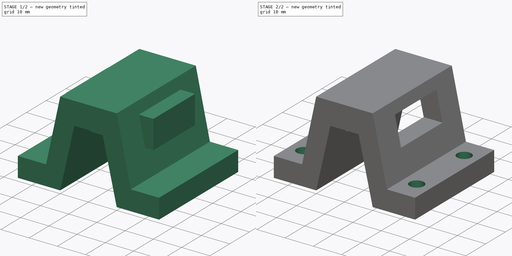
[diagram: build sequence overview — one tinted view per stage of 2, left to right]
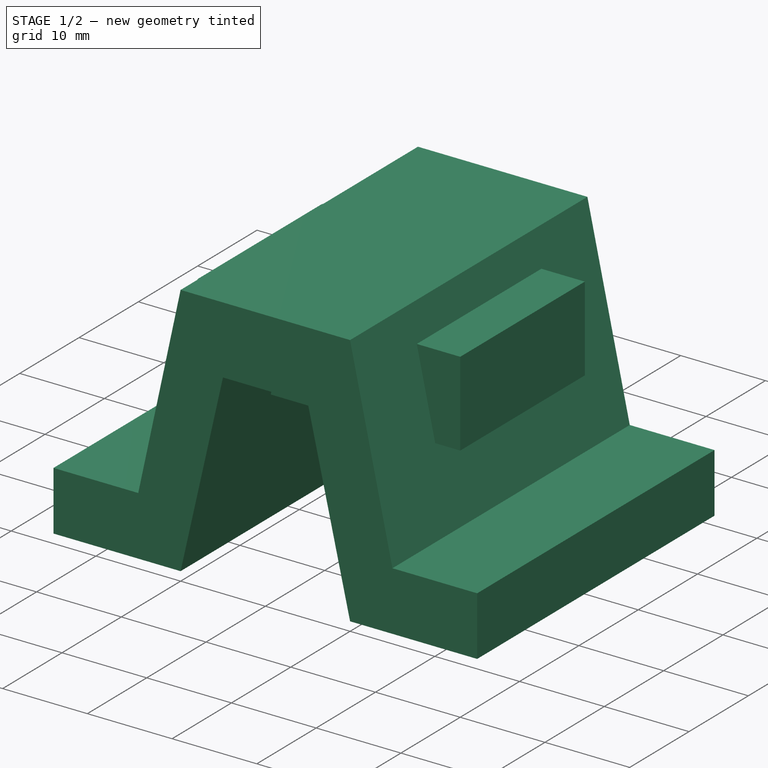
[diagram: stage 1 of 2 — iso view after this stage's code; geometry added in this stage tinted green]
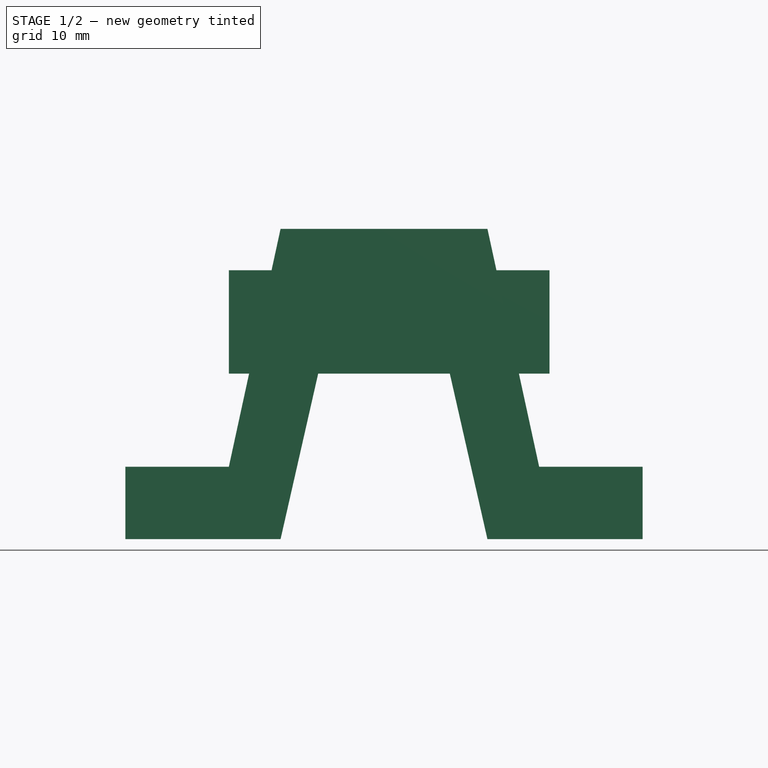
[diagram: stage 1 of 2 — front view after this stage's code; geometry added in this stage tinted green]
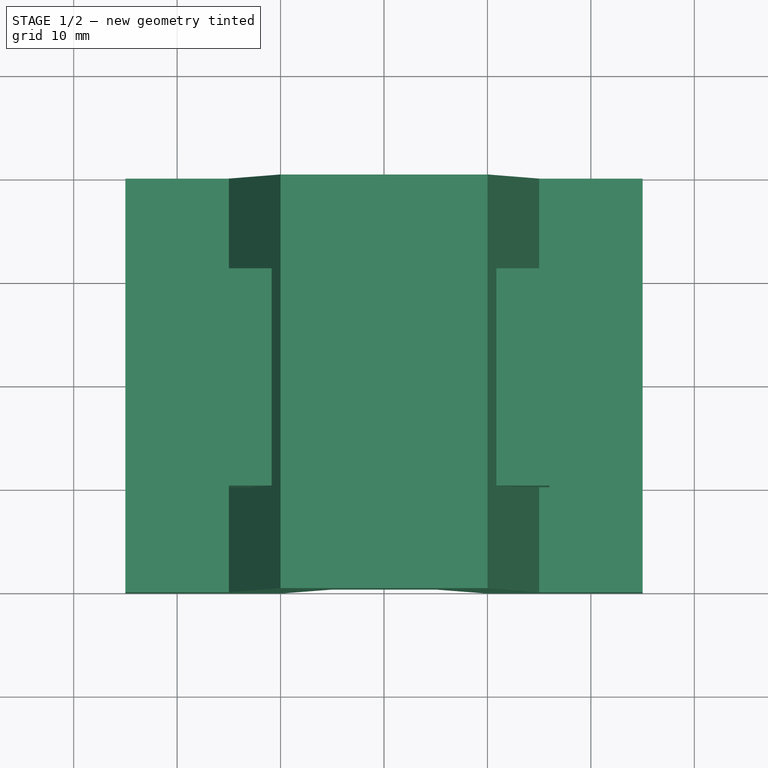
[diagram: stage 1 of 2 — top view after this stage's code; geometry added in this stage tinted green]
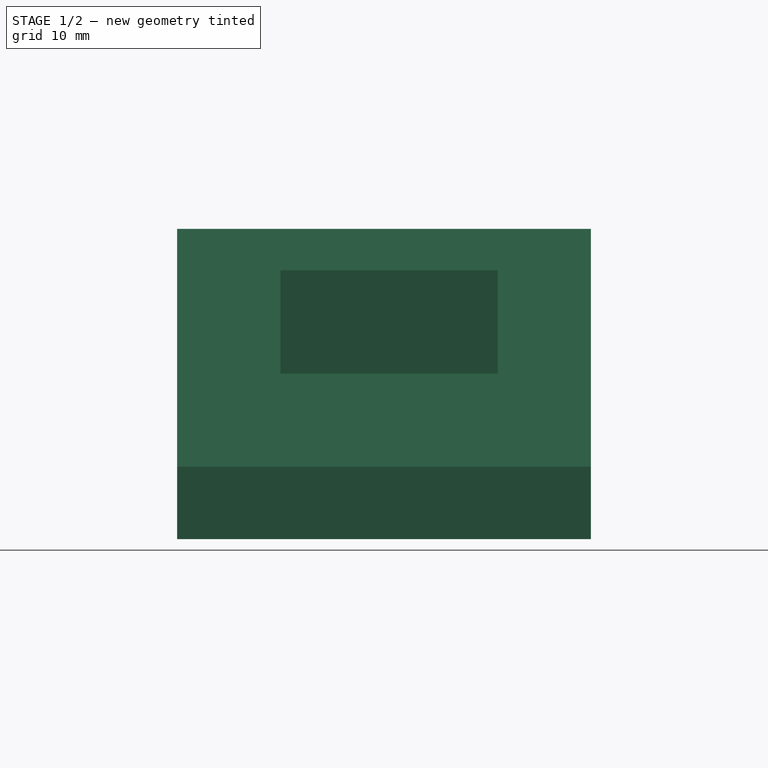
[diagram: stage 1 of 2 — right view after this stage's code; geometry added in this stage tinted green]
FCSTD DOCUMENT  (FreeCAD 0.16R6700 (Git))
Label: ejer4
License: All rights reserved
LicenseURL: http://en.wikipedia.org/wiki/All_rights_reserved
objects: Sketcher::SketchObject×3, PartDesign::Pad×1, Part::Box×1, Part::Cut×1, PartDesign::Pocket×1
note: 9 computed .brp shape members not serialized (recipe doc carries the construction recipe); baked Part::Feature solids carry a one-line shape summary decoded from their .brp

FEATURE [Sketcher::SketchObject] Sketch
  Placement = pos=(0,0,0) rot=(-1,0,0;4.71239rad)
  sketch-geometry (12):
    g0: LineSegment StartX=-25 StartY=-15 StartZ=0 EndX=-10 EndY=-15 EndZ=0
    g1: LineSegment StartX=-10 StartY=-15 StartZ=0 EndX=-5 EndY=7 EndZ=0
    g2: LineSegment StartX=-5 StartY=7 StartZ=0 EndX=5 EndY=7 EndZ=0
    g3: LineSegment StartX=5 StartY=7 StartZ=0 EndX=10 EndY=-15 EndZ=0
    g4: LineSegment StartX=10 StartY=-15 StartZ=0 EndX=25 EndY=-15 EndZ=0
    g5: LineSegment StartX=25 StartY=-15 StartZ=0 EndX=25 EndY=-8 EndZ=0
    g6: LineSegment StartX=25 StartY=-8 StartZ=0 EndX=15 EndY=-8 EndZ=0
    g7: LineSegment StartX=15 StartY=-8 StartZ=0 EndX=10 EndY=15 EndZ=0
    g8: LineSegment StartX=10 StartY=15 StartZ=0 EndX=-10 EndY=15 EndZ=0
    g9: LineSegment StartX=-10 StartY=15 StartZ=0 EndX=-15 EndY=-8 EndZ=0
    g10: LineSegment StartX=-15 StartY=-8 StartZ=0 EndX=-25 EndY=-8 EndZ=0
    g11: LineSegment StartX=-25 StartY=-8 StartZ=0 EndX=-25 EndY=-15 EndZ=0
  constraints (34):
    c: Horizontal(g0)
    c: Coincident(g0,g1)
    c: Coincident(g1,g2)
    c: Horizontal(g2)
    c: Coincident(g2,g3)
    c: Coincident(g3,g4)
    c: Horizontal(g4)
    c: Coincident(g4,g5)
    c: Coincident(g5,g6)
    c: Horizontal(g6)
    c: Coincident(g6,g7)
    c: Coincident(g7,g8)
    c: Horizontal(g8)
    c: Coincident(g8,g9)
    c: Coincident(g9,g10)
    c: Coincident(g10,g11)
    c: Coincident(g11,g0)
    c: Horizontal(g10)
    c: Vertical(g11)
    c: Vertical(g5)
    c: Symmetric(g0,g3,g-2)
    c: Symmetric(g1,g2,g-2)
    c: Symmetric(g8,g7,g-2)
    c: Symmetric(g6,g9,g-2)
    c: DistanceX(g10,g10) = 10
    c: DistanceX(g6,g6) = 10
    c: DistanceX(g0,g3) = 20
    c: DistanceX(g4,g4) = 15
    c: DistanceX(g8,g7) = 20
    c: DistanceX(g1,g2) = 10
    c: DistanceY(g2,g7) = 8
    c: DistanceY(g4,g7) = 30
    c: DistanceY(g4,g5) = 7
    c: Symmetric(g0,g8,g-1)
FEATURE [PartDesign::Pad] Pad
  Length = 40
  Length2 = 100
  Midplane = true
  Placement = pos=(0,0,0) rot=(-1,0,0;4.71239rad)
  Sketch = -> Sketch
  Type = 0
FEATURE [Part::Box] Box  label="Cubo"
  Height = 10
  Length = 31
  Placement = pos=(-15,-10,1) rot=(0,0,1;0rad)
  Width = 21
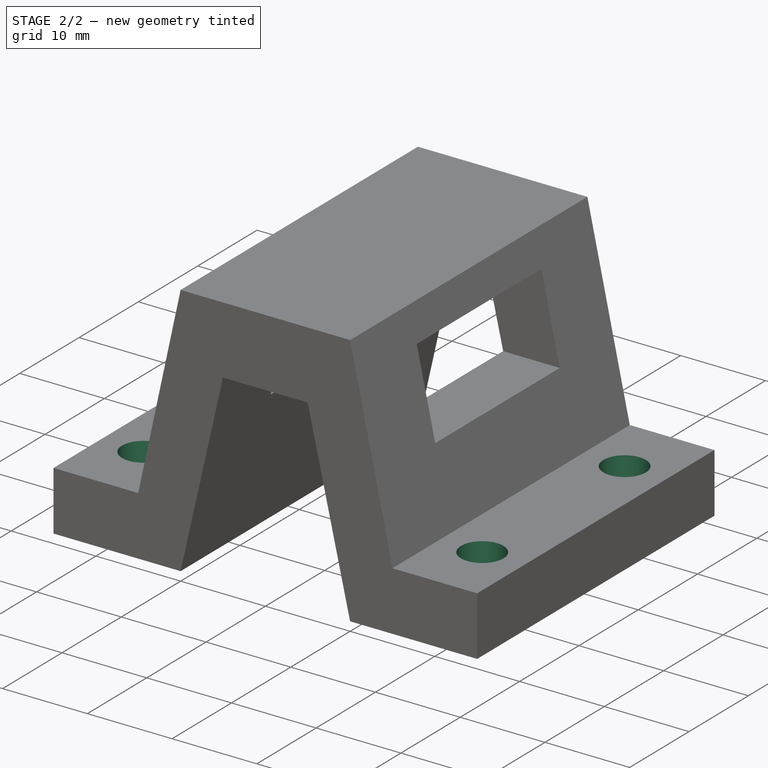
[diagram: stage 2 of 2 — iso view after this stage's code; geometry added in this stage tinted green]
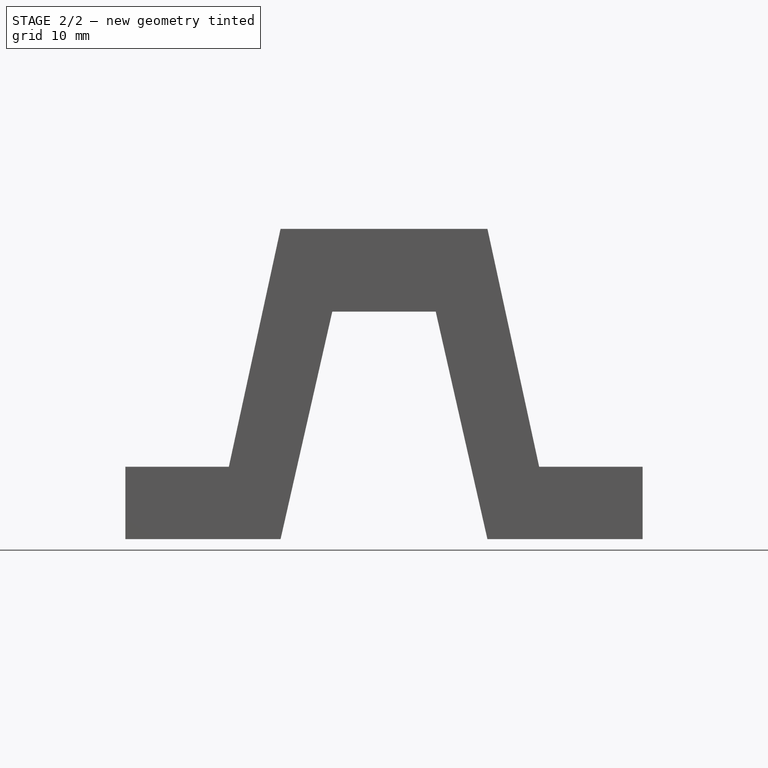
[diagram: stage 2 of 2 — front view after this stage's code; geometry added in this stage tinted green]
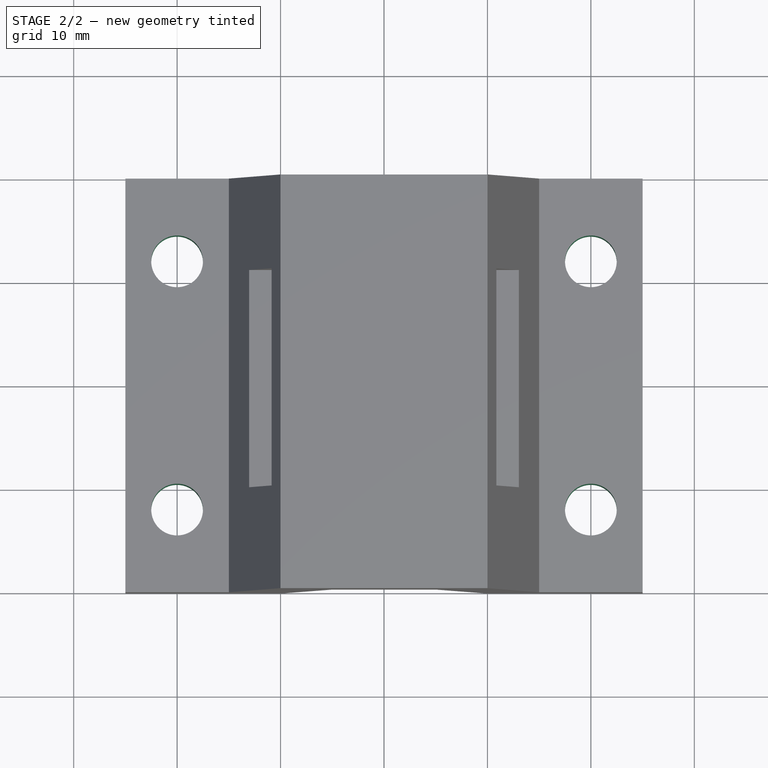
[diagram: stage 2 of 2 — top view after this stage's code; geometry added in this stage tinted green]
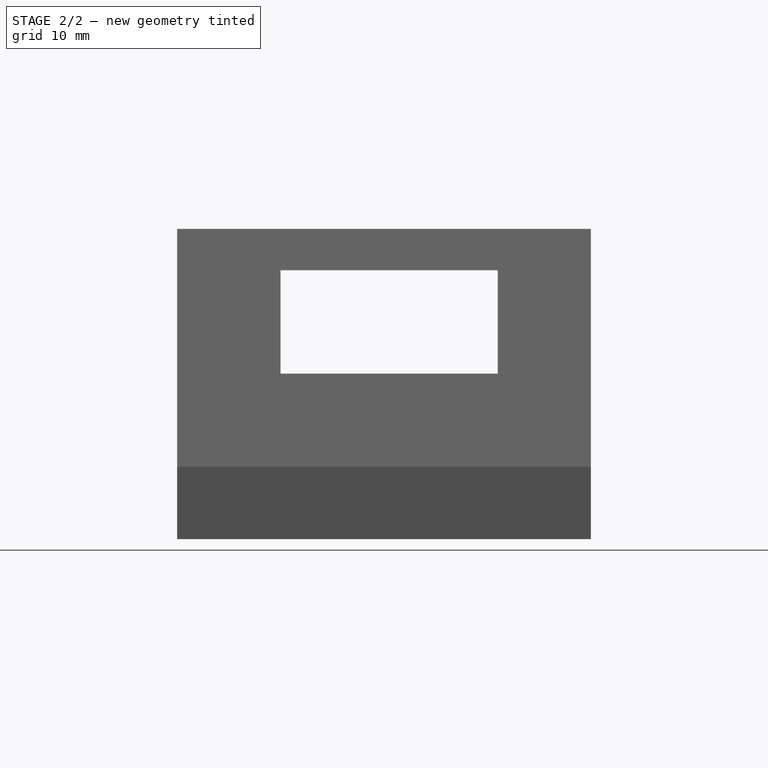
[diagram: stage 2 of 2 — right view after this stage's code; geometry added in this stage tinted green]
FEATURE [Sketcher::SketchObject] Sketch001
  ExternalGeometry = -> [Pad]
  Placement = pos=(-12.6625,0,2.75271) rot=(-0.627523,0,0.778598;3.14159rad)
  Support = -> Pad [Face10]
  sketch-geometry (4):
    g0: LineSegment [constr] StartX=-7.53335 StartY=9.81069 StartZ=0 EndX=2.46665 EndY=9.81069 EndZ=0
    g1: LineSegment [constr] StartX=2.46665 StartY=9.81069 StartZ=0 EndX=2.46665 EndY=-10.1893 EndZ=0
    g2: LineSegment [constr] StartX=2.46665 StartY=-10.1893 StartZ=0 EndX=-7.53335 EndY=-10.1893 EndZ=0
    g3: LineSegment [constr] StartX=-7.53335 StartY=-10.1893 StartZ=0 EndX=-7.53335 EndY=9.81069 EndZ=0
  constraints (11):
    c: Coincident(g0,g1)
    c: Coincident(g1,g2)
    c: Coincident(g2,g3)
    c: Coincident(g3,g0)
    c: Horizontal(g0)
    c: Horizontal(g2)
    c: Vertical(g1)
    c: Vertical(g3)
    c: DistanceX(g-3,g0) = 5
    c: DistanceX(g0,g0) = 10
    c: DistanceY(g1,g1) = 20
FEATURE [Part::Cut] Cut
  Base = -> Pad
  Tool = -> Box
FEATURE [Sketcher::SketchObject] Sketch002
  Placement = pos=(0,0,-8) rot=(0,0,1;0rad)
  Support = -> Cut [Face6]
  sketch-geometry (4):
    g0: Circle CenterX=-20.0021 CenterY=12 CenterZ=0 NormalX=0 NormalY=0 NormalZ=1 Radius=2.5
    g1: Circle CenterX=-20.0021 CenterY=-12 CenterZ=0 NormalX=0 NormalY=0 NormalZ=1 Radius=2.5
    g2: Circle CenterX=19.9979 CenterY=12 CenterZ=0 NormalX=0 NormalY=0 NormalZ=1 Radius=2.5
    g3: Circle CenterX=19.9979 CenterY=-12 CenterZ=0 NormalX=0 NormalY=0 NormalZ=1 Radius=2.5
  constraints (9):
    c: Radius(g0) = 2.5
    c: Equal(g0,g2)
    c: Equal(g0,g3)
    c: Equal(g0,g1)
    c: DistanceY(g1,g0) = 24
    c: DistanceY(g3,g2) = 24
    c: Symmetric(g3,g2,g-1)
    c: Symmetric(g0,g1,g-1)
    c: DistanceX(g1,g3) = 40
FEATURE [PartDesign::Pocket] Pocket
  Length = 5
  Sketch = -> Sketch002
  Type = 1
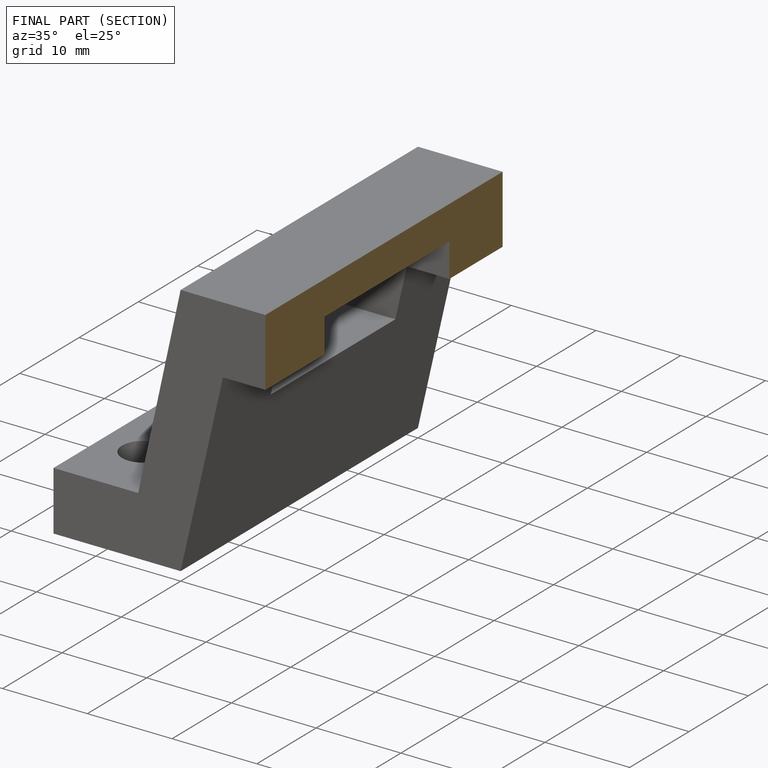
[diagram: finished part — half-section view (interior)]
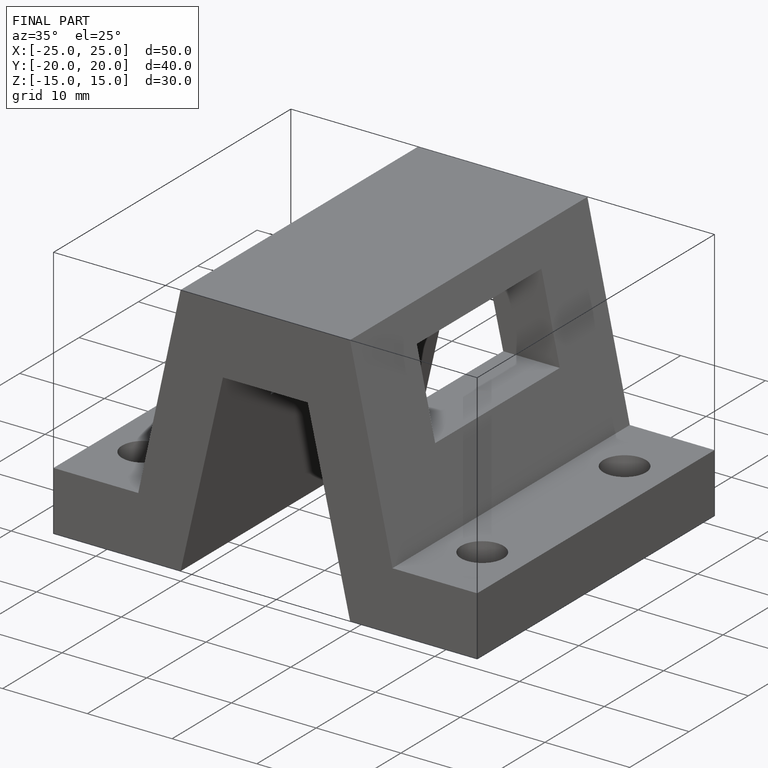
[diagram: finished part — iso view with bounding-box wireframe]
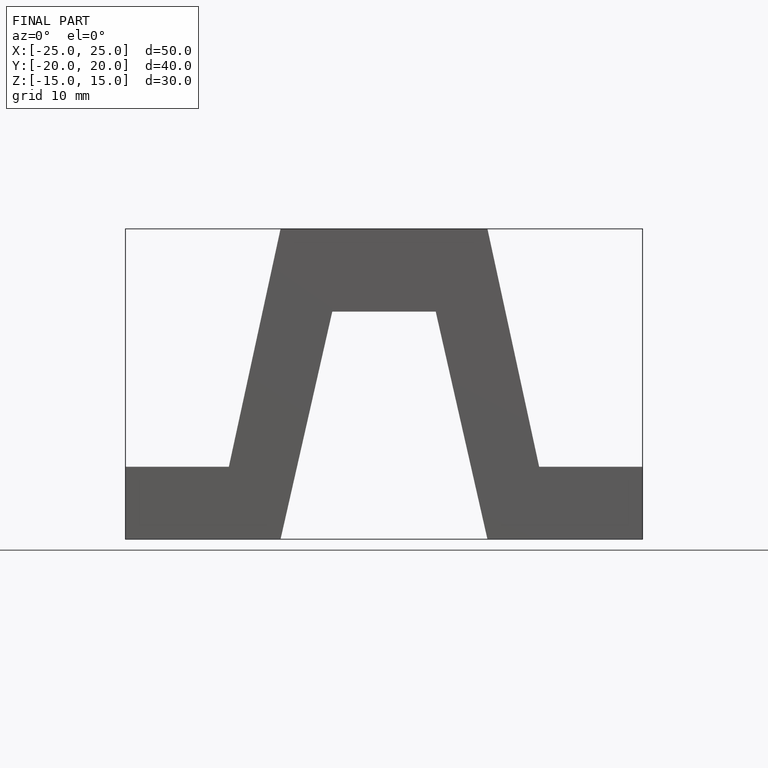
[diagram: finished part — front view with bounding-box wireframe]
